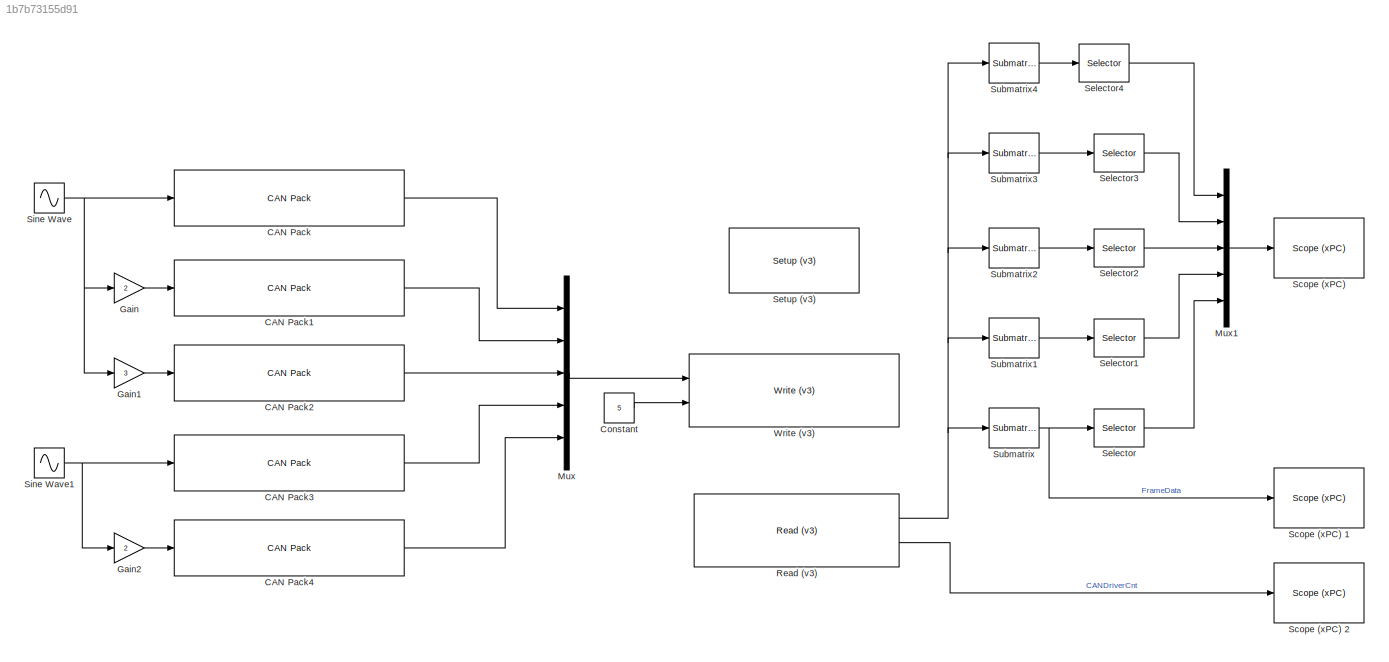
MODEL slx_1b7b73155d91
KIND model
BLOCK [Reference] CAN Pack  REF=canmsglib/CAN Pack
  ByteOrders = str2num('[int32(1)]')
  DataFormat = manually specified signals
  DataTypes = str2num('[int32(4)]')
  Factors = str2num('[double(1)]')
  Maximums = str2num('[double(Inf)]')
  Minimums = str2num('[double(-Inf)]')
  MsgIDType = Extended (29-bit identifier)
  MsgIdentifier = 1048575
  MsgLength = 8
  MsgList = (none)
  MsgName = Test message
  MultiplexTypes = str2num('[int32(1)]')
  MultiplexValues = str2num('[double(0)]')
  NSignals = 1
  Offsets = str2num('[double(0)]')
  Ports = [1, 1]
  Remote = off
  SignalInfo = Signal1$0$64$1$4$1$0$1$0$-Inf$Inf$#
  SignalSizes = str2num('[int32(64)]')
  SourceBlock = canmsglib/CAN Pack
  SourceType = CAN Pack
  StartBits = str2num('[int32(0)]')
BLOCK [Reference] CAN Pack1  REF=canmsglib/CAN Pack
  ByteOrders = str2num('[int32(1)]')
  DataFormat = manually specified signals
  DataTypes = str2num('[int32(4)]')
  Factors = str2num('[double(1)]')
  Maximums = str2num('[double(Inf)]')
  Minimums = str2num('[double(-Inf)]')
  MsgIDType = Extended (29-bit identifier)
  MsgIdentifier = 1048575
  MsgLength = 8
  MsgList = (none)
  MsgName = Test message
  MultiplexTypes = str2num('[int32(1)]')
  MultiplexValues = str2num('[double(0)]')
  NSignals = 1
  Offsets = str2num('[double(0)]')
  Ports = [1, 1]
  Remote = off
  SignalInfo = Signal1$0$64$1$4$1$0$1$0$-Inf$Inf$#
  SignalSizes = str2num('[int32(64)]')
  SourceBlock = canmsglib/CAN Pack
  SourceType = CAN Pack
  StartBits = str2num('[int32(0)]')
BLOCK [Reference] CAN Pack2  REF=canmsglib/CAN Pack
  ByteOrders = str2num('[int32(1)]')
  DataFormat = manually specified signals
  DataTypes = str2num('[int32(4)]')
  Factors = str2num('[double(1)]')
  Maximums = str2num('[double(Inf)]')
  Minimums = str2num('[double(-Inf)]')
  MsgIDType = Extended (29-bit identifier)
  MsgIdentifier = 1048575
  MsgLength = 8
  MsgList = (none)
  MsgName = Test message
  MultiplexTypes = str2num('[int32(1)]')
  MultiplexValues = str2num('[double(0)]')
  NSignals = 1
  Offsets = str2num('[double(0)]')
  Ports = [1, 1]
  Remote = off
  SignalInfo = Signal1$0$64$1$4$1$0$1$0$-Inf$Inf$#
  SignalSizes = str2num('[int32(64)]')
  SourceBlock = canmsglib/CAN Pack
  SourceType = CAN Pack
  StartBits = str2num('[int32(0)]')
BLOCK [Reference] CAN Pack3  REF=canmsglib/CAN Pack
  ByteOrders = str2num('[int32(1)]')
  DataFormat = manually specified signals
  DataTypes = str2num('[int32(4)]')
  Factors = str2num('[double(1)]')
  Maximums = str2num('[double(Inf)]')
  Minimums = str2num('[double(-Inf)]')
  MsgIDType = Extended (29-bit identifier)
  MsgIdentifier = 2000
  MsgLength = 8
  MsgList = (none)
  MsgName = Test message
  MultiplexTypes = str2num('[int32(1)]')
  MultiplexValues = str2num('[double(0)]')
  NSignals = 1
  Offsets = str2num('[double(0)]')
  Ports = [1, 1]
  Remote = off
  SignalInfo = Signal1$0$64$1$4$1$0$1$0$-Inf$Inf$#
  SignalSizes = str2num('[int32(64)]')
  SourceBlock = canmsglib/CAN Pack
  SourceType = CAN Pack
  StartBits = str2num('[int32(0)]')
BLOCK [Reference] CAN Pack4  REF=canmsglib/CAN Pack
  ByteOrders = str2num('[int32(1)]')
  DataFormat = manually specified signals
  DataTypes = str2num('[int32(4)]')
  Factors = str2num('[double(1)]')
  Maximums = str2num('[double(Inf)]')
  Minimums = str2num('[double(-Inf)]')
  MsgIDType = Extended (29-bit identifier)
  MsgIdentifier = 2000
  MsgLength = 8
  MsgList = (none)
  MsgName = Test message
  MultiplexTypes = str2num('[int32(1)]')
  MultiplexValues = str2num('[double(0)]')
  NSignals = 1
  Offsets = str2num('[double(0)]')
  Ports = [1, 1]
  Remote = off
  SignalInfo = Signal1$0$64$1$4$1$0$1$0$-Inf$Inf$#
  SignalSizes = str2num('[int32(64)]')
  SourceBlock = canmsglib/CAN Pack
  SourceType = CAN Pack
  StartBits = str2num('[int32(0)]')
BLOCK [Constant] Constant
  Value = 5
BLOCK [Gain] Gain
  Gain = 2
  OutDataTypeStr = Inherit: Inherit via internal rule
  ParamDataTypeStr = Inherit: Inherit via internal rule
  SaturateOnIntegerOverflow = off
BLOCK [Gain] Gain1
  Gain = 3
  OutDataTypeStr = Inherit: Inherit via internal rule
  ParamDataTypeStr = Inherit: Inherit via internal rule
  SaturateOnIntegerOverflow = off
BLOCK [Gain] Gain2
  Gain = 2
  OutDataTypeStr = Inherit: Inherit via internal rule
  ParamDataTypeStr = Inherit: Inherit via internal rule
  SaturateOnIntegerOverflow = off
BLOCK [Mux] Mux
  DisplayOption = bar
  Inputs = 5
  Ports = [5, 1]
BLOCK [Mux] Mux1
  DisplayOption = bar
  Inputs = 5
  Ports = [5, 1]
BLOCK [Reference] Read (v3)  REF=speedgoatlib_IO601/Read (v3)
  Ports = [0, 2]
  SourceBlock = speedgoatlib_IO601/Read (v3)
  SourceType = read_IO601_3
  depth1 = 10
  depth2 = 5
  id = 1
  outputFormat = Matrix of doubles (legacy)
  pciSlot = -1
  port1 = off
  port2 = on
  sampletime = 0.005
BLOCK [Reference] Scope (xPC)  REF=xpclib/Misc./Scope (xPC) 
  Ports = [1]
  SourceBlock = xpclib/Misc./Scope (xPC)
  SourceType = xpcscopeblock
  autorestart = off
  autostart = on
  dynamicfilemode = off
  filename = data.dat
  formatstr = '%15.6f'
  grid = on
  interleave = 1
  maxwritefilesize = 512*1024^2
  mode = Lazy
  noprepostsamples = 0
  nosamples = 250
  scopeno = 1
  scopetype = Target
  triggerlevel = 0.5
  triggermode = Signal triggering
  triggersample = 0
  triggerscope = 1
  triggersignal = 5
  triggerslope = Rising
  trigsignalfromport = off
  viewmode = Graphical redraw
  writesize = 512
  ylimits = [0,0]
BLOCK [Reference] Scope (xPC) 1  REF=xpclib/Misc./Scope (xPC) 
  Ports = [1]
  SourceBlock = xpclib/Misc./Scope (xPC)
  SourceType = xpcscopeblock
  autorestart = off
  autostart = on
  dynamicfilemode = off
  filename = data.dat
  formatstr = '%15.6f'
  grid = on
  interleave = 1
  maxwritefilesize = 512*1024^2
  mode = Lazy
  noprepostsamples = 0
  nosamples = 3
  scopeno = 2
  scopetype = Target
  triggerlevel = 0.0
  triggermode = FreeRun
  triggersample = 0
  triggerscope = 1
  triggersignal = 1
  triggerslope = Rising
  trigsignalfromport = off
  viewmode = Numerical
  writesize = 512
  ylimits = [0,0]
BLOCK [Reference] Scope (xPC) 2  REF=xpclib/Misc./Scope (xPC) 
  Ports = [1]
  SourceBlock = xpclib/Misc./Scope (xPC)
  SourceType = xpcscopeblock
  autorestart = off
  autostart = on
  dynamicfilemode = off
  filename = data.dat
  formatstr = '%15.6f'
  grid = on
  interleave = 1
  maxwritefilesize = 512*1024^2
  mode = Lazy
  noprepostsamples = 0
  nosamples = 3
  scopeno = 3
  scopetype = Target
  triggerlevel = 0.0
  triggermode = FreeRun
  triggersample = 0
  triggerscope = 1
  triggersignal = 1
  triggerslope = Rising
  trigsignalfromport = off
  viewmode = Numerical
  writesize = 512
  ylimits = [0,0]
BLOCK [Selector] Selector
  Indices = [6]
  InputPortWidth = 6
  Ports = [1, 1]
BLOCK [Selector] Selector1
  Indices = [6]
  InputPortWidth = 6
  Ports = [1, 1]
BLOCK [Selector] Selector2
  Indices = [6]
  InputPortWidth = 6
  Ports = [1, 1]
BLOCK [Selector] Selector3
  Indices = [6]
  InputPortWidth = 6
  Ports = [1, 1]
BLOCK [Selector] Selector4
  Indices = [6]
  InputPortWidth = 6
  Ports = [1, 1]
BLOCK [Reference] Setup (v3)  REF=speedgoatlib_IO601/Setup (v3)
  Ports = []
  SourceBlock = speedgoatlib_IO601/Setup (v3)
  SourceType = setup_IO601_3
  can1Baudrate = 1 MBaud
  can1UserBR = [1,1,5,2]
  can1bus = Highspeed
  can1enable = on
  can2Baudrate = 1 MBaud
  can2UserBR = [1,1,5,2]
  can2bus = Highspeed
  can2enable = on
  extAcc1 = [0,0,0,0]
  extAcc2 = [double(hex2dec('1FFFFFFF')), 2000, double(hex2dec('1FFFFFFF')), 1048575]
  id = 1
  pciSlot = -1
  stdAcc1 = [0,0,0,0]
  stdAcc2 = [0,0,0,0]
BLOCK [Sin] Sine Wave
  Amplitude = 10
  Frequency = 2*pi*10
  Ports = [0, 1]
  Samples = 100
BLOCK [Sin] Sine Wave1
  Amplitude = 10
  Frequency = 2*pi*5
  Ports = [0, 1]
  Samples = 100
BLOCK [Reference] Submatrix  REF=dspmtrx3/Submatrix
  ColEndIndex = 1
  ColEndMode = Last
  ColSpan = All columns
  ColStartIndex = 1
  ColStartMode = First
  Ports = [1, 1]
  RowEndIndex = 1
  RowEndMode = Last
  RowSpan = One row
  RowStartIndex = 1
  RowStartMode = Index
  SourceBlock = dspmtrx3/Submatrix
  SourceType = Submatrix
BLOCK [Reference] Submatrix1  REF=dspmtrx3/Submatrix
  ColEndIndex = 1
  ColEndMode = Last
  ColSpan = All columns
  ColStartIndex = 1
  ColStartMode = First
  Ports = [1, 1]
  RowEndIndex = 1
  RowEndMode = Last
  RowSpan = One row
  RowStartIndex = 2
  RowStartMode = Index
  SourceBlock = dspmtrx3/Submatrix
  SourceType = Submatrix
BLOCK [Reference] Submatrix2  REF=dspmtrx3/Submatrix
  ColEndIndex = 1
  ColEndMode = Last
  ColSpan = All columns
  ColStartIndex = 1
  ColStartMode = First
  Ports = [1, 1]
  RowEndIndex = 1
  RowEndMode = Last
  RowSpan = One row
  RowStartIndex = 3
  RowStartMode = Index
  SourceBlock = dspmtrx3/Submatrix
  SourceType = Submatrix
BLOCK [Reference] Submatrix3  REF=dspmtrx3/Submatrix
  ColEndIndex = 1
  ColEndMode = Last
  ColSpan = All columns
  ColStartIndex = 1
  ColStartMode = First
  Ports = [1, 1]
  RowEndIndex = 1
  RowEndMode = Last
  RowSpan = One row
  RowStartIndex = 4
  RowStartMode = Index
  SourceBlock = dspmtrx3/Submatrix
  SourceType = Submatrix
BLOCK [Reference] Submatrix4  REF=dspmtrx3/Submatrix
  ColEndIndex = 1
  ColEndMode = Last
  ColSpan = All columns
  ColStartIndex = 1
  ColStartMode = First
  Ports = [1, 1]
  RowEndIndex = 1
  RowEndMode = Last
  RowSpan = One row
  RowStartIndex = 5
  RowStartMode = Index
  SourceBlock = dspmtrx3/Submatrix
  SourceType = Submatrix
BLOCK [Reference] Write (v3)  REF=speedgoatlib_IO601/Write (v3)
  Ports = [2]
  Priority = 1
  SourceBlock = speedgoatlib_IO601/Write (v3)
  SourceType = write_IO601_3
  id = 1
  init = []
  inputType = CAN_MESSAGE plus count
  maxMsg = 5
  pciSlot = -1
  port = 1
  sampletime = 0.005
  status = off
  term = []
LINE CAN Pack1:1 -> Mux:2
LINE CAN Pack2:1 -> Mux:3
LINE CAN Pack3:1 -> Mux:4
LINE CAN Pack4:1 -> Mux:5
LINE CAN Pack:1 -> Mux:1
LINE Constant:1 -> Write (v3):2
LINE Gain1:1 -> CAN Pack2:1
LINE Gain2:1 -> CAN Pack4:1
LINE Gain:1 -> CAN Pack1:1
LINE Mux1:1 -> Scope (xPC):1
LINE Mux:1 -> Write (v3):1
NET Read (v3):1 -> Submatrix1:1, Submatrix2:1, Submatrix3:1, Submatrix4:1, Submatrix:1
LINE Read (v3):2 -> Scope (xPC) 2:1
LINE Selector1:1 -> Mux1:4
LINE Selector2:1 -> Mux1:3
LINE Selector3:1 -> Mux1:2
LINE Selector4:1 -> Mux1:1
LINE Selector:1 -> Mux1:5
NET Sine Wave1:1 -> CAN Pack3:1, Gain2:1
NET Sine Wave:1 -> CAN Pack:1, Gain1:1, Gain:1
LINE Submatrix1:1 -> Selector1:1
LINE Submatrix2:1 -> Selector2:1
LINE Submatrix3:1 -> Selector3:1
LINE Submatrix4:1 -> Selector4:1
NET Submatrix:1 -> Scope (xPC) 1:1, Selector:1
note: NET lines group one-source signal fan-out (src -> all destinations, sorted); 1:1 wires keep LINE
